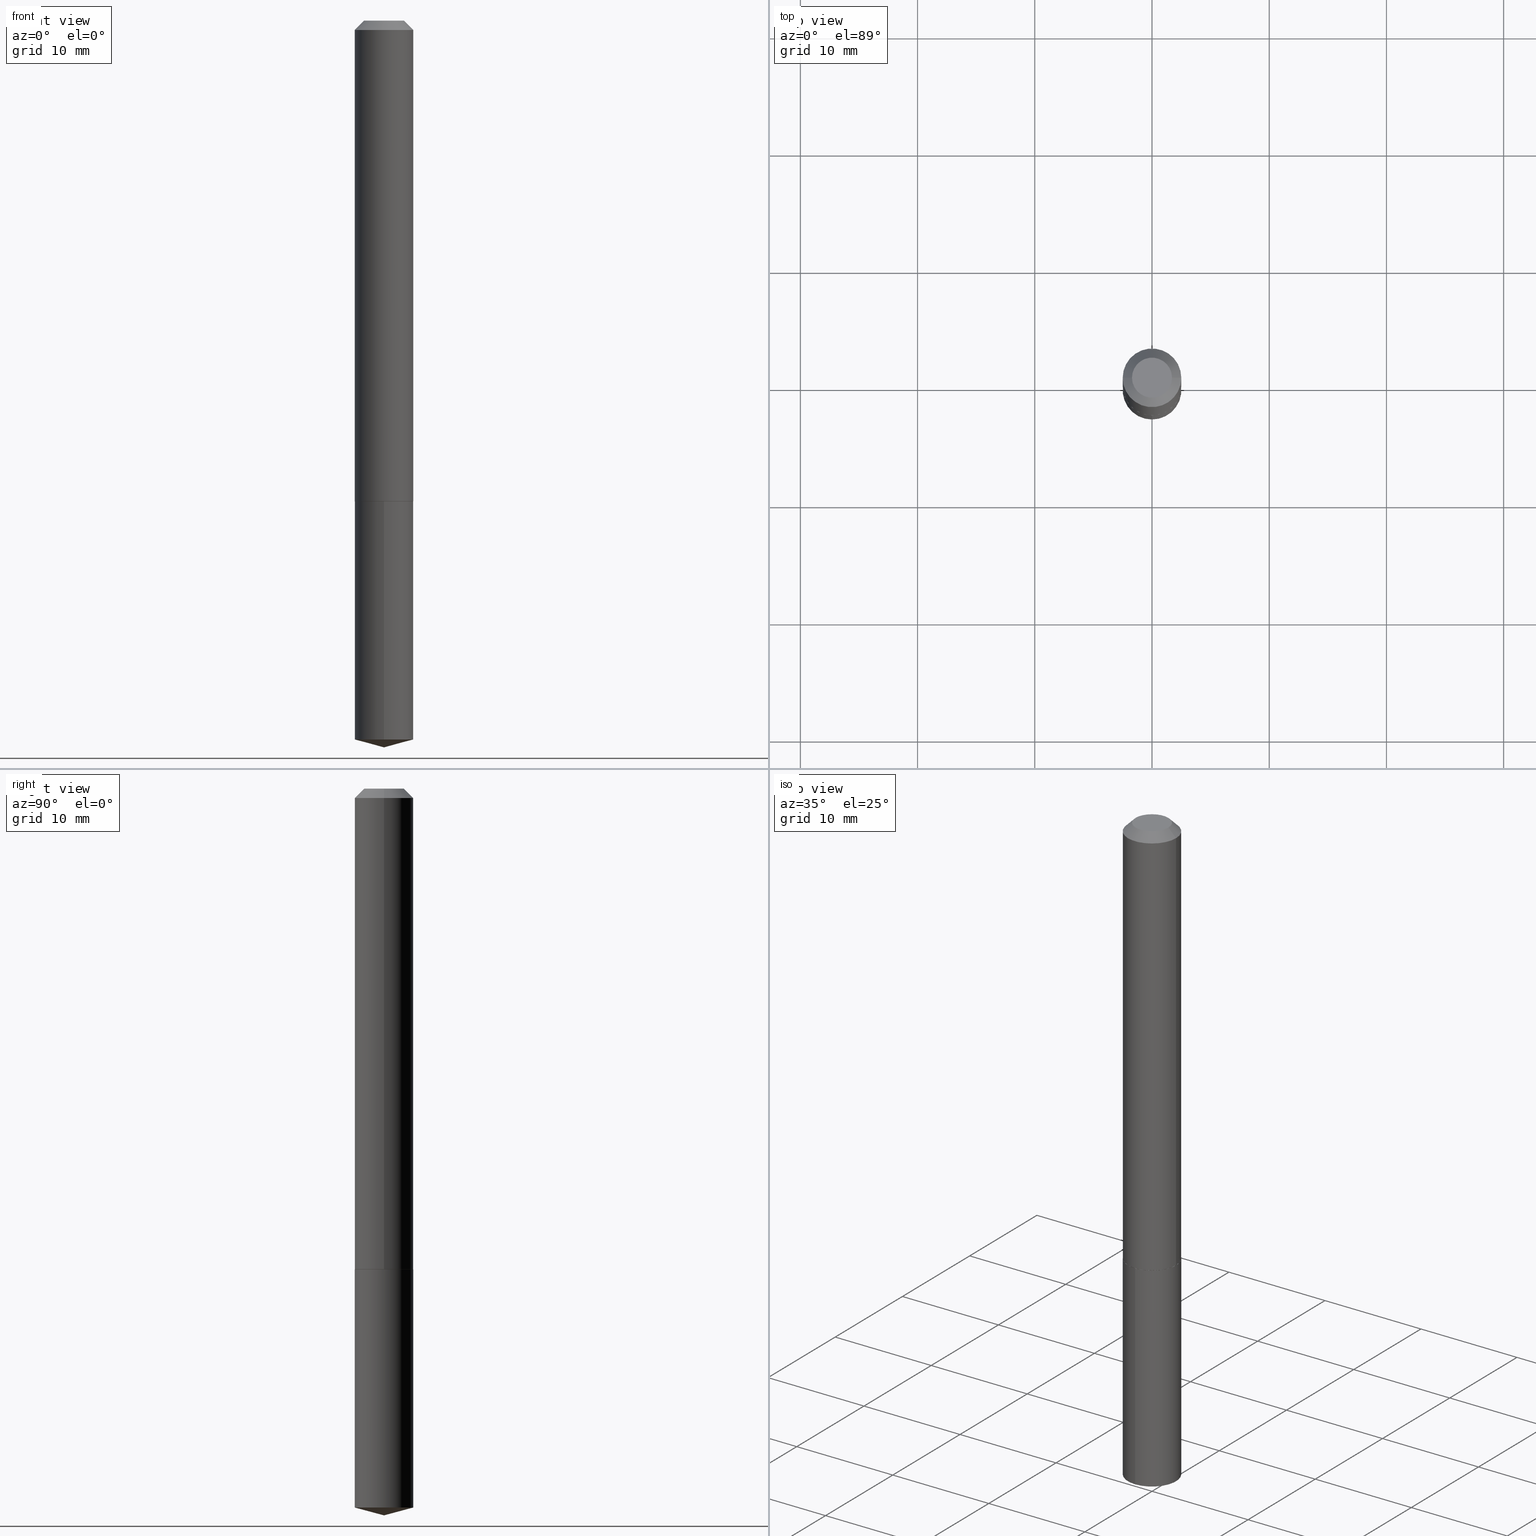
[diagram: canonical four-view strip — front | top / right | iso, engineering-drawing reading convention]
A machine part, canonical four-view strip (front | top / right | iso — engineering-drawing reading convention). The complete STEP part file that produces these views, byte-faithful:
ISO-10303-21;
HEADER;
FILE_DESCRIPTION (( 'STEP AP203' ),
    '1' );
FILE_NAME ('63007.STEP',
    '2024-04-23T07:25:26',
    ( '' ),
    ( '' ),
    'SwSTEP 2.0',
    'SolidWorks 2023',
    '' );
FILE_SCHEMA (( 'CONFIG_CONTROL_DESIGN' ));
ENDSEC;

DATA;
#1 = APPROVAL_DATE_TIME ( #325, #304 ) ;
#2 = ORIENTED_EDGE ( 'NONE', *, *, #142, .F. ) ;
#3 = CARTESIAN_POINT ( 'NONE',  ( -6.874726756181734128E-16, -0.09845000000000563023, -1.614199999999999635 ) ) ;
#4 = CIRCLE ( 'NONE', #221, 0.09844999999999999585 ) ;
#5 = EDGE_LOOP ( 'NONE', ( #296, #244, #120, #182 ) ) ;
#6 = EDGE_CURVE ( 'NONE', #123, #162, #85, .T. ) ;
#7 = EDGE_LOOP ( 'NONE', ( #89, #301, #61, #267 ) ) ;
#8 = ORIENTED_EDGE ( 'NONE', *, *, #184, .F. ) ;
#9 = DIRECTION ( 'NONE',  ( -6.982962677686265922E-15, -1.000000000000000000, 2.774858297271979165E-15 ) ) ;
#10 = CYLINDRICAL_SURFACE ( 'NONE', #77, 0.09844999999999999585 ) ;
#11 = FACE_OUTER_BOUND ( 'NONE', #333, .T. ) ;
#12 = DIRECTION ( 'NONE',  ( -6.982962677686265922E-15, -1.000000000000000000, 2.774858297271979165E-15 ) ) ;
#13 = APPROVAL_PERSON_ORGANIZATION ( #231, #324, #75 ) ;
#14 = DIRECTION ( 'NONE',  ( 1.000000000000000000, -6.982962677686266711E-15, 4.876163892769828153E-29 ) ) ;
#15 = EDGE_CURVE ( 'NONE', #118, #159, #319, .T. ) ;
#16 = DIRECTION ( 'NONE',  ( -2.445468806185136597E-29, 3.491481338843145583E-15, 1.000000000000000000 ) ) ;
#17 = CALENDAR_DATE ( 2024, 23, 4 ) ;
#18 = PERSON_AND_ORGANIZATION ( #179, #53 ) ;
#19 = DIRECTION ( 'NONE',  ( 1.000000000000000000, -6.982962677686267499E-15, 4.876176775795935793E-29 ) ) ;
#20 = VERTEX_POINT ( 'NONE', #336 ) ;
#21 = APPLICATION_PROTOCOL_DEFINITION ( 'international standard', 'config_control_design', 1994, #340 ) ;
#22 = CARTESIAN_POINT ( 'NONE',  ( -0.09795000000000038398, -4.937323340309476167E-15, -1.614200000000000523 ) ) ;
#23 = CARTESIAN_POINT ( 'NONE',  ( 3.946253012540955150E-29, -5.634203436491184654E-15, -1.613700000000000134 ) ) ;
#24 = ORIENTED_EDGE ( 'NONE', *, *, #55, .T. ) ;
#25 = CONICAL_SURFACE ( 'NONE', #124, 0.09845000000000000973, 0.7853981633974452814 ) ;
#26 = AXIS2_PLACEMENT_3D ( 'NONE', #344, #275, #189 ) ;
#27 = ORIENTED_EDGE ( 'NONE', *, *, #122, .T. ) ;
#28 = CARTESIAN_POINT ( 'NONE',  ( 7.642090019328601786E-31, -1.091087918388490144E-16, -0.03125000000000020123 ) ) ;
#29 = PERSON_AND_ORGANIZATION ( #179, #53 ) ;
#30 = VERTEX_POINT ( 'NONE', #127 ) ;
#31 = LINE ( 'NONE', #331, #32 ) ;
#32 = VECTOR ( 'NONE', #338, 39.37007874015748854 ) ;
#33 = COORDINATED_UNIVERSAL_TIME_OFFSET ( 5, 0, .BEHIND. ) ;
#34 = ORIENTED_EDGE ( 'NONE', *, *, #122, .F. ) ;
#35 = EDGE_CURVE ( 'NONE', #262, #159, #251, .T. ) ;
#36 = ORIENTED_EDGE ( 'NONE', *, *, #235, .F. ) ;
#37 = ORIENTED_EDGE ( 'NONE', *, *, #346, .F. ) ;
#38 = CARTESIAN_POINT ( 'NONE',  ( -0.09845000000000020401, -4.934674113135364966E-15, -1.613700000000000134 ) ) ;
#39 = CARTESIAN_POINT ( 'NONE',  ( 0.09845000000000010687, -6.874726756182137434E-16, 4.800596035771104119E-30 ) ) ;
#40 = DESIGN_CONTEXT ( 'detailed design', #340, 'design' ) ;
#41 = FACE_OUTER_BOUND ( 'NONE', #181, .T. ) ;
#42 = CC_DESIGN_APPROVAL ( #304, ( #183 ) ) ;
#43 = DIRECTION ( 'NONE',  ( 1.000000000000000000, -6.982962677686262766E-15, 0.000000000000000000 ) ) ;
#44 = CC_DESIGN_DATE_AND_TIME_ASSIGNMENT ( #288, #58, ( #183 ) ) ;
#45 = DIRECTION ( 'NONE',  ( 6.982962677686265922E-15, 1.000000000000000000, -3.491974583815791773E-15 ) ) ;
#46 = CALENDAR_DATE ( 2024, 23, 4 ) ;
#47 = CIRCLE ( 'NONE', #56, 0.09845000000000020401 ) ;
#48 = DIRECTION ( 'NONE',  ( 1.000000000000000000, 0.000000000000000000, 0.000000000000000000 ) ) ;
#49 = FACE_OUTER_BOUND ( 'NONE', #335, .T. ) ;
#50 = CARTESIAN_POINT ( 'NONE',  ( 3.946253012540955150E-29, -5.634203436491184654E-15, -1.613700000000000134 ) ) ;
#51 = ORIENTED_EDGE ( 'NONE', *, *, #112, .T. ) ;
#52 = CIRCLE ( 'NONE', #266, 0.09844999999999999585 ) ;
#53 = ORGANIZATION ( 'UNSPECIFIED', 'UNSPECIFIED', '' ) ;
#54 = CARTESIAN_POINT ( 'NONE',  ( 5.968304087087962554E-29, -8.523560761635967221E-15, -2.440900000000000070 ) ) ;
#55 = EDGE_CURVE ( 'NONE', #362, #123, #167, .T. ) ;
#56 = AXIS2_PLACEMENT_3D ( 'NONE', #173, #176, #210 ) ;
#57 = PRODUCT_DEFINITION ( 'UNKNOWN', '', #203, #40 ) ;
#58 = DATE_TIME_ROLE ( 'classification_date' ) ;
#59 = DIRECTION ( 'NONE',  ( -2.445468806185136597E-29, 3.491481338843145583E-15, 1.000000000000000000 ) ) ;
#60 = CARTESIAN_POINT ( 'NONE',  ( 5.904358669745989161E-29, -8.430647679871851381E-15, -2.414520402005156718 ) ) ;
#61 = ORIENTED_EDGE ( 'NONE', *, *, #6, .F. ) ;
#62 = DIRECTION ( 'NONE',  ( -6.745023994389849388E-15, -0.9659258262890689783, 0.2588190451025181305 ) ) ;
#63 = ORIENTED_EDGE ( 'NONE', *, *, #357, .F. ) ;
#64 = CC_DESIGN_SECURITY_CLASSIFICATION ( #183, ( #203 ) ) ;
#65 = LENGTH_MEASURE_WITH_UNIT ( LENGTH_MEASURE( 0.02539999999999999897 ), #204 );
#66 = CIRCLE ( 'NONE', #26, 0.09795000000000038398 ) ;
#67 = VERTEX_POINT ( 'NONE', #129 ) ;
#68 = EDGE_LOOP ( 'NONE', ( #27, #188 ) ) ;
#69 = EDGE_CURVE ( 'NONE', #141, #162, #337, .T. ) ;
#70 = DIRECTION ( 'NONE',  ( -0.7071067811861008190, 7.493145998868740151E-15, 0.7071067811869942155 ) ) ;
#71 = CARTESIAN_POINT ( 'NONE',  ( 3.947475746944047390E-29, -5.635949177160606158E-15, -1.614199999999999857 ) ) ;
#72 = CARTESIAN_POINT ( 'NONE',  ( -2.949913012720686933E-47, 4.211693974208519599E-33, 1.206277097160142896E-18 ) ) ;
#73 = APPROVAL_STATUS ( 'not_yet_approved' ) ;
#74 = CARTESIAN_POINT ( 'NONE',  ( 3.947475746944047390E-29, -5.635949177160606158E-15, -1.614199999999999857 ) ) ;
#75 = APPROVAL_ROLE ( '' ) ;
#76 = DIRECTION ( 'NONE',  ( 2.445124375061641849E-29, -3.491974583815791773E-15, -1.000000000000000000 ) ) ;
#77 = AXIS2_PLACEMENT_3D ( 'NONE', #168, #274, #9 ) ;
#78 = DIRECTION ( 'NONE',  ( -2.445468806185136597E-29, 3.491481338843145583E-15, 1.000000000000000000 ) ) ;
#79 = CARTESIAN_POINT ( 'NONE',  ( 0.09845000000000020401, -6.321676112109399581E-15, -1.613700000000000134 ) ) ;
#80 = PERSON_AND_ORGANIZATION_ROLE ( 'design_supplier' ) ;
#81 = EDGE_LOOP ( 'NONE', ( #37, #157, #88, #285 ) ) ;
#82 = APPROVAL_PERSON_ORGANIZATION ( #29, #304, #212 ) ;
#83 = CALENDAR_DATE ( 2024, 23, 4 ) ;
#84 = PRODUCT_DEFINITION_SHAPE ( 'NONE', 'NONE',  #57 ) ;
#85 = CIRCLE ( 'NONE', #286, 0.09845000000000000973 ) ;
#86 = AXIS2_PLACEMENT_3D ( 'NONE', #165, #217, #12 ) ;
#87 = PLANE ( 'NONE',  #328 ) ;
#88 = ORIENTED_EDGE ( 'NONE', *, *, #6, .T. ) ;
#89 = ORIENTED_EDGE ( 'NONE', *, *, #225, .T. ) ;
#90 = DIRECTION ( 'NONE',  ( 2.438088387897960049E-29, -3.491481338843145188E-15, -1.000000000000000000 ) ) ;
#91 = ORIENTED_EDGE ( 'NONE', *, *, #290, .F. ) ;
#92 = CC_DESIGN_PERSON_AND_ORGANIZATION_ASSIGNMENT ( #106, #198, ( #183 ) ) ;
#93 = ORIENTED_EDGE ( 'NONE', *, *, #69, .F. ) ;
#94 = ORIENTED_EDGE ( 'NONE', *, *, #366, .T. ) ;
#95 = EDGE_CURVE ( 'NONE', #141, #362, #248, .T. ) ;
#96 = FACE_OUTER_BOUND ( 'NONE', #365, .T. ) ;
#97 = ADVANCED_FACE ( 'NONE', ( #96 ), #194, .F. ) ;
#98 = DIRECTION ( 'NONE',  ( -2.445124375061642129E-29, 3.491974583815791773E-15, 1.000000000000000000 ) ) ;
#99 = LINE ( 'NONE', #374, #105 ) ;
#100 = CONICAL_SURFACE ( 'NONE', #353, 146.9311341562586506, 1.308996938995753423 ) ;
#101 = EDGE_CURVE ( 'NONE', #238, #215, #66, .T. ) ;
#102 = CARTESIAN_POINT ( 'NONE',  ( 3.947475746944048512E-29, -5.635949177160606947E-15, -1.614200000000000523 ) ) ;
#103 = DIRECTION ( 'NONE',  ( -2.438088387897960049E-29, 3.491481338843145188E-15, 1.000000000000000000 ) ) ;
#104 = CYLINDRICAL_SURFACE ( 'NONE', #355, 0.09845000000000010687 ) ;
#105 = VECTOR ( 'NONE', #70, 39.37007874015748143 ) ;
#106 = PERSON_AND_ORGANIZATION ( #179, #53 ) ;
#107 = FACE_OUTER_BOUND ( 'NONE', #327, .T. ) ;
#108 = FACE_OUTER_BOUND ( 'NONE', #369, .T. ) ;
#109 = DATE_AND_TIME ( #46, #277 ) ;
#110 = ADVANCED_FACE ( 'NONE', ( #342 ), #372, .F. ) ;
#111 = DIRECTION ( 'NONE',  ( -0.7071067811865453523, 2.468850131082234184E-15, -0.7071067811865496822 ) ) ;
#112 = EDGE_CURVE ( 'NONE', #215, #141, #99, .T. ) ;
#113 = DIRECTION ( 'NONE',  ( -2.445468806185136597E-29, 3.491481338843145583E-15, 1.000000000000000000 ) ) ;
#114 = VECTOR ( 'NONE', #350, 39.37007874015748143 ) ;
#115 = DATE_AND_TIME ( #83, #177 ) ;
#116 = AXIS2_PLACEMENT_3D ( 'NONE', #309, #379, #191 ) ;
#117 = ORIENTED_EDGE ( 'NONE', *, *, #225, .F. ) ;
#118 = VERTEX_POINT ( 'NONE', #306 ) ;
#119 = AXIS2_PLACEMENT_3D ( 'NONE', #293, #305, #130 ) ;
#120 = ORIENTED_EDGE ( 'NONE', *, *, #357, .T. ) ;
#121 = ORIENTED_EDGE ( 'NONE', *, *, #211, .F. ) ;
#122 = EDGE_CURVE ( 'NONE', #67, #20, #131, .T. ) ;
#123 = VERTEX_POINT ( 'NONE', #223 ) ;
#124 = AXIS2_PLACEMENT_3D ( 'NONE', #125, #128, #138 ) ;
#125 = CARTESIAN_POINT ( 'NONE',  ( 7.642090019328601786E-31, -1.091087918388490144E-16, -0.03125000000000020123 ) ) ;
#126 = CC_DESIGN_PERSON_AND_ORGANIZATION_ASSIGNMENT ( #18, #348, ( #359 ) ) ;
#127 = CARTESIAN_POINT ( 'NONE',  ( 5.968304087087962554E-29, -8.523560761635967221E-15, -2.440900000000000070 ) ) ;
#128 = DIRECTION ( 'NONE',  ( 2.445468806185136597E-29, -3.491481338843145583E-15, -1.000000000000000000 ) ) ;
#129 = CARTESIAN_POINT ( 'NONE',  ( -0.06719999999999999585, 5.238094878599404868E-16, 1.206277097156670637E-18 ) ) ;
#130 = DIRECTION ( 'NONE',  ( -6.982962677686265922E-15, -1.000000000000000000, 2.774858297271979165E-15 ) ) ;
#131 = CIRCLE ( 'NONE', #247, 0.06719999999999999585 ) ;
#132 = CARTESIAN_POINT ( 'NONE',  ( -0.09845000000000010687, 6.995293233558193923E-16, -4.842691596355960348E-30 ) ) ;
#133 = VECTOR ( 'NONE', #111, 39.37007874015748143 ) ;
#134 = EDGE_CURVE ( 'NONE', #159, #118, #4, .T. ) ;
#135 = FACE_OUTER_BOUND ( 'NONE', #330, .T. ) ;
#136 = DIRECTION ( 'NONE',  ( -2.445124375061642129E-29, 3.491974583815791773E-15, 1.000000000000000000 ) ) ;
#137 = PERSON_AND_ORGANIZATION_ROLE ( 'creator' ) ;
#138 = DIRECTION ( 'NONE',  ( -1.000000000000000000, 6.982962677686266711E-15, 0.000000000000000000 ) ) ;
#139 = CARTESIAN_POINT ( 'NONE',  ( -9.029587910784769090E-28, 1.289565497578552606E-13, 36.92917874015748225 ) ) ;
#140 = CARTESIAN_POINT ( 'NONE',  ( -1.474956506360343467E-47, 2.105846987104259800E-33, 6.031385485800714479E-19 ) ) ;
#141 = VERTEX_POINT ( 'NONE', #38 ) ;
#142 = EDGE_CURVE ( 'NONE', #246, #262, #52, .T. ) ;
#143 = DIRECTION ( 'NONE',  ( -2.445468806185136597E-29, 3.491481338843145583E-15, 1.000000000000000000 ) ) ;
#144 = COORDINATED_UNIVERSAL_TIME_OFFSET ( 5, 0, .BEHIND. ) ;
#145 = AXIS2_PLACEMENT_3D ( 'NONE', #60, #289, #260 ) ;
#146 = ORIENTED_EDGE ( 'NONE', *, *, #15, .F. ) ;
#147 = LOCAL_TIME ( 3, 25, 26.00000000000000000, #33 ) ;
#148 = AXIS2_PLACEMENT_3D ( 'NONE', #219, #228, #254 ) ;
#149 = ORIENTED_EDGE ( 'NONE', *, *, #302, .T. ) ;
#150 = DIRECTION ( 'NONE',  ( -2.445468806185136597E-29, 3.491481338843145583E-15, 1.000000000000000000 ) ) ;
#151 = APPROVAL_STATUS ( 'not_yet_approved' ) ;
#152 = ORIENTED_EDGE ( 'NONE', *, *, #101, .T. ) ;
#153 = ADVANCED_FACE ( 'NONE', ( #135 ), #278, .T. ) ;
#154 = CIRCLE ( 'NONE', #264, 0.09845000000000000973 ) ;
#155 =( GEOMETRIC_REPRESENTATION_CONTEXT ( 3 ) GLOBAL_UNCERTAINTY_ASSIGNED_CONTEXT ( ( #218 ) ) GLOBAL_UNIT_ASSIGNED_CONTEXT ( ( #227, #307, #226 ) ) REPRESENTATION_CONTEXT ( 'NONE', 'WORKASPACE' ) );
#156 = CALENDAR_DATE ( 2024, 23, 4 ) ;
#157 = ORIENTED_EDGE ( 'NONE', *, *, #363, .T. ) ;
#158 = ADVANCED_FACE ( 'NONE', ( #41 ), #10, .T. ) ;
#159 = VERTEX_POINT ( 'NONE', #373 ) ;
#160 = MANIFOLD_SOLID_BREP ( 'Body-Move/Copy2[1]', #361 ) ;
#161 = ADVANCED_FACE ( 'NONE', ( #11 ), #341, .T. ) ;
#162 = VERTEX_POINT ( 'NONE', #378 ) ;
#163 = DIRECTION ( 'NONE',  ( -6.982962677686265922E-15, -1.000000000000000000, 2.774858297271979165E-15 ) ) ;
#164 = DIRECTION ( 'NONE',  ( -2.445468806185136597E-29, 3.491481338843145583E-15, 1.000000000000000000 ) ) ;
#165 = CARTESIAN_POINT ( 'NONE',  ( 3.947475746944047390E-29, -5.635949177160606158E-15, -1.614199999999999857 ) ) ;
#166 = AXIS2_PLACEMENT_3D ( 'NONE', #377, #200, #48 ) ;
#167 = LINE ( 'NONE', #39, #312 ) ;
#168 = CARTESIAN_POINT ( 'NONE',  ( 3.947475746944047390E-29, -5.635949177160606158E-15, -1.614199999999999857 ) ) ;
#169 = APPROVAL_DATE_TIME ( #109, #324 ) ;
#170 = MANIFOLD_SOLID_BREP ( 'Body-Move/Copy2[2]', #272 ) ;
#171 = CARTESIAN_POINT ( 'NONE',  ( 0.000000000000000000, 0.000000000000000000, 0.000000000000000000 ) ) ;
#172 = CONICAL_SURFACE ( 'NONE', #245, 0.09845000000000020401, 0.7853981633968165621 ) ;
#173 = CARTESIAN_POINT ( 'NONE',  ( 3.946253012540955150E-29, -5.634203436491184654E-15, -1.613700000000000134 ) ) ;
#174 = VECTOR ( 'NONE', #250, 39.37007874015748143 ) ;
#175 = PERSON_AND_ORGANIZATION ( #179, #53 ) ;
#176 = DIRECTION ( 'NONE',  ( -2.445468806185136597E-29, 3.491481338843145583E-15, 1.000000000000000000 ) ) ;
#177 = LOCAL_TIME ( 3, 25, 26.00000000000000000, #144 ) ;
#178 = DIRECTION ( 'NONE',  ( 1.000000000000000000, -6.982962677686266711E-15, 0.000000000000000000 ) ) ;
#179 = PERSON ( 'UNSPECIFIED', 'UNSPECIFIED', 'UNSPECIFIED', ('UNSPECIFIED'), ('UNSPECIFIED'), ('UNSPECIFIED') ) ;
#180 = CARTESIAN_POINT ( 'NONE',  ( 6.995293233558775708E-16, 0.09844999999999157203, -2.414520402005157163 ) ) ;
#181 = EDGE_LOOP ( 'NONE', ( #216, #298, #149, #241 ) ) ;
#182 = ORIENTED_EDGE ( 'NONE', *, *, #95, .F. ) ;
#183 = SECURITY_CLASSIFICATION ( '', '', #257 ) ;
#184 = EDGE_CURVE ( 'NONE', #215, #238, #326, .T. ) ;
#185 = AXIS2_PLACEMENT_3D ( 'NONE', #351, #78, #315 ) ;
#186 = ORIENTED_EDGE ( 'NONE', *, *, #101, .F. ) ;
#187 = APPROVAL ( #73, 'UNSPECIFIED' ) ;
#188 = ORIENTED_EDGE ( 'NONE', *, *, #346, .T. ) ;
#189 = DIRECTION ( 'NONE',  ( 1.000000000000000000, -6.982962677686262766E-15, 0.000000000000000000 ) ) ;
#190 = PERSON_AND_ORGANIZATION ( #179, #53 ) ;
#191 = DIRECTION ( 'NONE',  ( -6.982962677686267499E-15, -1.000000000000000000, 3.510303681827553658E-15 ) ) ;
#192 = DIRECTION ( 'NONE',  ( 1.000000000000000000, -6.982962677686265922E-15, 4.876176775795935793E-29 ) ) ;
#193 = CARTESIAN_POINT ( 'NONE',  ( 8.037174106459642832E-30, -1.013799004635187062E-14, -1.614200000000000301 ) ) ;
#194 = PLANE ( 'NONE',  #370 ) ;
#195 = PERSON_AND_ORGANIZATION ( #179, #53 ) ;
#196 = ADVANCED_FACE ( 'NONE', ( #201 ), #87, .F. ) ;
#197 = DIRECTION ( 'NONE',  ( 1.000000000000000000, -6.982962677686266711E-15, 0.000000000000000000 ) ) ;
#198 = PERSON_AND_ORGANIZATION_ROLE ( 'classification_officer' ) ;
#199 = FACE_OUTER_BOUND ( 'NONE', #303, .T. ) ;
#200 = DIRECTION ( 'NONE',  ( 0.000000000000000000, 0.000000000000000000, 1.000000000000000000 ) ) ;
#201 = FACE_OUTER_BOUND ( 'NONE', #68, .T. ) ;
#202 = APPROVAL_STATUS ( 'not_yet_approved' ) ;
#203 = PRODUCT_DEFINITION_FORMATION_WITH_SPECIFIED_SOURCE ( 'ANY', '', #359, .NOT_KNOWN. ) ;
#204 =( LENGTH_UNIT ( ) NAMED_UNIT ( * ) SI_UNIT ( $, .METRE. ) );
#205 = DIRECTION ( 'NONE',  ( 2.445468806185136597E-29, -3.491481338843145583E-15, -1.000000000000000000 ) ) ;
#206 = CC_DESIGN_DATE_AND_TIME_ASSIGNMENT ( #115, #343, ( #57 ) ) ;
#207 = CARTESIAN_POINT ( 'NONE',  ( 7.642090019328601786E-31, -1.091087918388490144E-16, -0.03125000000000020123 ) ) ;
#208 = ORIENTED_EDGE ( 'NONE', *, *, #363, .F. ) ;
#209 = VECTOR ( 'NONE', #62, 39.37007874015748143 ) ;
#210 = DIRECTION ( 'NONE',  ( 1.000000000000000000, -6.982962677686269866E-15, 0.000000000000000000 ) ) ;
#211 = EDGE_CURVE ( 'NONE', #30, #246, #323, .T. ) ;
#212 = APPROVAL_ROLE ( '' ) ;
#213 = ORIENTED_EDGE ( 'NONE', *, *, #134, .T. ) ;
#214 = ADVANCED_FACE ( 'NONE', ( #199 ), #329, .T. ) ;
#215 = VERTEX_POINT ( 'NONE', #22 ) ;
#216 = ORIENTED_EDGE ( 'NONE', *, *, #35, .F. ) ;
#217 = DIRECTION ( 'NONE',  ( -2.445124375061642129E-29, 3.491974583815791773E-15, 1.000000000000000000 ) ) ;
#218 = UNCERTAINTY_MEASURE_WITH_UNIT (LENGTH_MEASURE( 1.000000000000000082E-05 ), #227, 'distance_accuracy_value', 'NONE');
#219 = CARTESIAN_POINT ( 'NONE',  ( 3.946253012540955150E-29, -5.634203436491184654E-15, -1.613700000000000134 ) ) ;
#220 = VECTOR ( 'NONE', #256, 39.37007874015748143 ) ;
#221 = AXIS2_PLACEMENT_3D ( 'NONE', #71, #313, #163 ) ;
#222 = AXIS2_PLACEMENT_3D ( 'NONE', #364, #205, #332 ) ;
#223 = CARTESIAN_POINT ( 'NONE',  ( 0.09845000000000000973, -7.965814674570621538E-16, -0.03125000000000020123 ) ) ;
#224 = DIRECTION ( 'NONE',  ( -2.445468806185136597E-29, 3.491481338843145583E-15, 1.000000000000000000 ) ) ;
#225 = EDGE_CURVE ( 'NONE', #362, #141, #47, .T. ) ;
#226 =( NAMED_UNIT ( * ) SI_UNIT ( $, .STERADIAN. ) SOLID_ANGLE_UNIT ( ) );
#227 =( CONVERSION_BASED_UNIT ( 'INCH', #65 ) LENGTH_UNIT ( ) NAMED_UNIT ( #232 ) );
#228 = DIRECTION ( 'NONE',  ( -2.445468806185136597E-29, 3.491481338843145583E-15, 1.000000000000000000 ) ) ;
#229 = DIRECTION ( 'NONE',  ( 1.000000000000000000, -6.982962677686267499E-15, 4.876176775795935793E-29 ) ) ;
#230 = CARTESIAN_POINT ( 'NONE',  ( 0.09845000000000020401, -6.321676112109399581E-15, -1.613700000000000134 ) ) ;
#231 = PERSON_AND_ORGANIZATION ( #179, #53 ) ;
#232 = DIMENSIONAL_EXPONENTS ( 1.000000000000000000, 0.000000000000000000, 0.000000000000000000, 0.000000000000000000, 0.000000000000000000, 0.000000000000000000, 0.000000000000000000 ) ;
#233 = CARTESIAN_POINT ( 'NONE',  ( 0.000000000000000000, 0.000000000000000000, 0.000000000000000000 ) ) ;
#234 = APPLICATION_CONTEXT ( 'configuration controlled 3d designs of mechanical parts and assemblies' ) ;
#235 = EDGE_CURVE ( 'NONE', #262, #246, #381, .T. ) ;
#236 = APPROVAL_PERSON_ORGANIZATION ( #190, #187, #310 ) ;
#237 = DIRECTION ( 'NONE',  ( 1.000000000000000000, -6.982962677686269866E-15, 0.000000000000000000 ) ) ;
#238 = VERTEX_POINT ( 'NONE', #390 ) ;
#239 = ORIENTED_EDGE ( 'NONE', *, *, #95, .T. ) ;
#240 = PRODUCT_RELATED_PRODUCT_CATEGORY ( 'detail', '', ( #359 ) ) ;
#241 = ORIENTED_EDGE ( 'NONE', *, *, #134, .F. ) ;
#242 = LINE ( 'NONE', #263, #133 ) ;
#243 = ORIENTED_EDGE ( 'NONE', *, *, #35, .T. ) ;
#244 = ORIENTED_EDGE ( 'NONE', *, *, #184, .T. ) ;
#245 = AXIS2_PLACEMENT_3D ( 'NONE', #23, #150, #281 ) ;
#246 = VERTEX_POINT ( 'NONE', #356 ) ;
#247 = AXIS2_PLACEMENT_3D ( 'NONE', #72, #164, #14 ) ;
#248 = CIRCLE ( 'NONE', #148, 0.09845000000000020401 ) ;
#249 = CARTESIAN_POINT ( 'NONE',  ( 6.995293233558578493E-16, 0.09844999999999436147, -1.614200000000000301 ) ) ;
#250 = DIRECTION ( 'NONE',  ( -2.445468806185136877E-29, 3.491481338843145188E-15, 1.000000000000000000 ) ) ;
#251 = LINE ( 'NONE', #249, #339 ) ;
#252 = LOCAL_TIME ( 3, 25, 26.00000000000000000, #316 ) ;
#253 = ADVANCED_FACE ( 'NONE', ( #287 ), #172, .T. ) ;
#254 = DIRECTION ( 'NONE',  ( 1.000000000000000000, -6.982962677686269866E-15, 0.000000000000000000 ) ) ;
#255 = CARTESIAN_POINT ( 'NONE',  ( 5.904358669745989161E-29, -8.430647679871851381E-15, -2.414520402005156718 ) ) ;
#256 = DIRECTION ( 'NONE',  ( -2.445124375061642129E-29, 3.491974583815791773E-15, 1.000000000000000000 ) ) ;
#257 = SECURITY_CLASSIFICATION_LEVEL ( 'unclassified' ) ;
#258 = LINE ( 'NONE', #230, #114 ) ;
#259 = DIRECTION ( 'NONE',  ( -6.982962677686267499E-15, -1.000000000000000000, 3.510303681827553658E-15 ) ) ;
#260 = DIRECTION ( 'NONE',  ( -6.982962677686265922E-15, -1.000000000000000000, 2.774858297271979165E-15 ) ) ;
#261 = ORIENTED_EDGE ( 'NONE', *, *, #366, .F. ) ;
#262 = VERTEX_POINT ( 'NONE', #180 ) ;
#263 = CARTESIAN_POINT ( 'NONE',  ( -0.09845000000000000973, 5.783638837793639525E-16, -0.03125000000000020123 ) ) ;
#264 = AXIS2_PLACEMENT_3D ( 'NONE', #28, #143, #197 ) ;
#265 = ORIENTED_EDGE ( 'NONE', *, *, #211, .T. ) ;
#266 = AXIS2_PLACEMENT_3D ( 'NONE', #255, #311, #279 ) ;
#267 = ORIENTED_EDGE ( 'NONE', *, *, #55, .F. ) ;
#268 = ADVANCED_FACE ( 'NONE', ( #295 ), #297, .T. ) ;
#269 = ORIENTED_EDGE ( 'NONE', *, *, #15, .T. ) ;
#270 = ADVANCED_FACE ( 'NONE', ( #107 ), #100, .T. ) ;
#271 = ORIENTED_EDGE ( 'NONE', *, *, #290, .T. ) ;
#272 = CLOSED_SHELL ( 'NONE', ( #268, #322, #214, #97, #253, #349, #380, #196 ) ) ;
#273 = CC_DESIGN_PERSON_AND_ORGANIZATION_ASSIGNMENT ( #175, #80, ( #203 ) ) ;
#274 = DIRECTION ( 'NONE',  ( -2.445124375061642129E-29, 3.491974583815791773E-15, 1.000000000000000000 ) ) ;
#275 = DIRECTION ( 'NONE',  ( -2.445468806185136597E-29, 3.491481338843145583E-15, 1.000000000000000000 ) ) ;
#276 = DIRECTION ( 'NONE',  ( -2.445468806185136877E-29, 3.491481338843145188E-15, 1.000000000000000000 ) ) ;
#277 = LOCAL_TIME ( 3, 25, 26.00000000000000000, #314 ) ;
#278 = CONICAL_SURFACE ( 'NONE', #116, 146.9311341562586506, 1.308996938995753423 ) ;
#279 = DIRECTION ( 'NONE',  ( -6.982962677686265922E-15, -1.000000000000000000, 2.774858297271979165E-15 ) ) ;
#280 = COORDINATED_UNIVERSAL_TIME_OFFSET ( 5, 0, .BEHIND. ) ;
#281 = DIRECTION ( 'NONE',  ( 1.000000000000000000, -6.982962677686269866E-15, 0.000000000000000000 ) ) ;
#282 = PERSON_AND_ORGANIZATION ( #179, #53 ) ;
#283 = DIRECTION ( 'NONE',  ( -2.445468806185136597E-29, 3.491481338843145583E-15, 1.000000000000000000 ) ) ;
#284 = CALENDAR_DATE ( 2024, 23, 4 ) ;
#285 = ORIENTED_EDGE ( 'NONE', *, *, #291, .F. ) ;
#286 = AXIS2_PLACEMENT_3D ( 'NONE', #207, #59, #178 ) ;
#287 = FACE_OUTER_BOUND ( 'NONE', #5, .T. ) ;
#288 = DATE_AND_TIME ( #284, #252 ) ;
#289 = DIRECTION ( 'NONE',  ( -2.445124375061642129E-29, 3.491974583815791773E-15, 1.000000000000000000 ) ) ;
#290 = EDGE_CURVE ( 'NONE', #162, #123, #154, .T. ) ;
#291 = EDGE_CURVE ( 'NONE', #67, #162, #242, .T. ) ;
#292 = CC_DESIGN_APPROVAL ( #324, ( #203 ) ) ;
#293 = CARTESIAN_POINT ( 'NONE',  ( 3.947475746944047390E-29, -5.635949177160606158E-15, -1.614199999999999857 ) ) ;
#294 = DIRECTION ( 'NONE',  ( 0.7071067811865453523, -7.319954787623248157E-15, -0.7071067811865496822 ) ) ;
#295 = FACE_OUTER_BOUND ( 'NONE', #81, .T. ) ;
#296 = ORIENTED_EDGE ( 'NONE', *, *, #112, .F. ) ;
#297 = CONICAL_SURFACE ( 'NONE', #222, 0.09845000000000000973, 0.7853981633974452814 ) ;
#298 = ORIENTED_EDGE ( 'NONE', *, *, #235, .T. ) ;
#299 = AXIS2_PLACEMENT_3D ( 'NONE', #74, #76, #45 ) ;
#300 = CC_DESIGN_APPROVAL ( #187, ( #57 ) ) ;
#301 = ORIENTED_EDGE ( 'NONE', *, *, #69, .T. ) ;
#302 = EDGE_CURVE ( 'NONE', #246, #118, #347, .T. ) ;
#303 = EDGE_LOOP ( 'NONE', ( #152, #51, #117, #63 ) ) ;
#304 = APPROVAL ( #151, 'UNSPECIFIED' ) ;
#305 = DIRECTION ( 'NONE',  ( -2.445124375061642129E-29, 3.491974583815791773E-15, 1.000000000000000000 ) ) ;
#306 = CARTESIAN_POINT ( 'NONE',  ( -6.874726756181734128E-16, -0.09845000000000563023, -1.614199999999999635 ) ) ;
#307 =( NAMED_UNIT ( * ) PLANE_ANGLE_UNIT ( ) SI_UNIT ( $, .RADIAN. ) );
#308 = APPLICATION_PROTOCOL_DEFINITION ( 'international standard', 'config_control_design', 1994, #234 ) ;
#309 = CARTESIAN_POINT ( 'NONE',  ( -9.029587910784769090E-28, 1.289565497578552606E-13, 36.92917874015748225 ) ) ;
#310 = APPROVAL_ROLE ( '' ) ;
#311 = DIRECTION ( 'NONE',  ( -2.445124375061642129E-29, 3.491974583815791773E-15, 1.000000000000000000 ) ) ;
#312 = VECTOR ( 'NONE', #276, 39.37007874015748143 ) ;
#313 = DIRECTION ( 'NONE',  ( -2.445124375061642129E-29, 3.491974583815791773E-15, 1.000000000000000000 ) ) ;
#314 = COORDINATED_UNIVERSAL_TIME_OFFSET ( 5, 0, .BEHIND. ) ;
#315 = DIRECTION ( 'NONE',  ( 1.000000000000000000, -6.982962677686266711E-15, 4.876163892769828153E-29 ) ) ;
#316 = COORDINATED_UNIVERSAL_TIME_OFFSET ( 5, 0, .BEHIND. ) ;
#317 = LINE ( 'NONE', #368, #375 ) ;
#318 = AXIS2_PLACEMENT_3D ( 'NONE', #171, #283, #19 ) ;
#319 = CIRCLE ( 'NONE', #119, 0.09844999999999999585 ) ;
#320 = CIRCLE ( 'NONE', #185, 0.06719999999999999585 ) ;
#321 = CYLINDRICAL_SURFACE ( 'NONE', #318, 0.09845000000000010687 ) ;
#322 = ADVANCED_FACE ( 'NONE', ( #385 ), #104, .T. ) ;
#323 = LINE ( 'NONE', #54, #209 ) ;
#324 = APPROVAL ( #202, 'UNSPECIFIED' ) ;
#325 = DATE_AND_TIME ( #156, #147 ) ;
#326 = CIRCLE ( 'NONE', #371, 0.09795000000000038398 ) ;
#327 = EDGE_LOOP ( 'NONE', ( #121, #94, #2 ) ) ;
#328 = AXIS2_PLACEMENT_3D ( 'NONE', #140, #90, #388 ) ;
#329 = CONICAL_SURFACE ( 'NONE', #389, 0.09845000000000020401, 0.7853981633968165621 ) ;
#330 = EDGE_LOOP ( 'NONE', ( #261, #265, #36 ) ) ;
#331 = CARTESIAN_POINT ( 'NONE',  ( 5.969425799116307608E-29, -8.521968369566275013E-15, -2.440900000000000070 ) ) ;
#332 = DIRECTION ( 'NONE',  ( -1.000000000000000000, 6.982962677686266711E-15, 0.000000000000000000 ) ) ;
#333 = EDGE_LOOP ( 'NONE', ( #334, #243, #146, #367 ) ) ;
#334 = ORIENTED_EDGE ( 'NONE', *, *, #142, .T. ) ;
#335 = EDGE_LOOP ( 'NONE', ( #93, #239, #24, #91 ) ) ;
#336 = CARTESIAN_POINT ( 'NONE',  ( 0.06719999999999999585, -6.227751425848515766E-16, 1.206277097163960667E-18 ) ) ;
#337 = LINE ( 'NONE', #132, #174 ) ;
#338 = DIRECTION ( 'NONE',  ( 6.863315791527703726E-15, 0.9659258262890707547, 0.2588190451025113581 ) ) ;
#339 = VECTOR ( 'NONE', #98, 39.37007874015748143 ) ;
#340 = APPLICATION_CONTEXT ( 'configuration controlled 3d designs of mechanical parts and assemblies' ) ;
#341 = CYLINDRICAL_SURFACE ( 'NONE', #86, 0.09844999999999999585 ) ;
#342 = FACE_OUTER_BOUND ( 'NONE', #358, .T. ) ;
#343 = DATE_TIME_ROLE ( 'creation_date' ) ;
#344 = CARTESIAN_POINT ( 'NONE',  ( 3.947475746944048512E-29, -5.635949177160606947E-15, -1.614200000000000523 ) ) ;
#345 = LOCAL_TIME ( 3, 25, 26.00000000000000000, #280 ) ;
#346 = EDGE_CURVE ( 'NONE', #20, #67, #320, .T. ) ;
#347 = LINE ( 'NONE', #3, #220 ) ;
#348 = PERSON_AND_ORGANIZATION_ROLE ( 'design_owner' ) ;
#349 = ADVANCED_FACE ( 'NONE', ( #49 ), #321, .T. ) ;
#350 = DIRECTION ( 'NONE',  ( 0.7071067811861008190, -2.468850131077577932E-15, 0.7071067811869942155 ) ) ;
#351 = CARTESIAN_POINT ( 'NONE',  ( -2.949913012720686933E-47, 4.211693974208519599E-33, 1.206277097160142896E-18 ) ) ;
#352 = PERSON_AND_ORGANIZATION_ROLE ( 'creator' ) ;
#353 = AXIS2_PLACEMENT_3D ( 'NONE', #139, #136, #259 ) ;
#354 = SHAPE_DEFINITION_REPRESENTATION ( #84, #384 ) ;
#355 = AXIS2_PLACEMENT_3D ( 'NONE', #233, #113, #229 ) ;
#356 = CARTESIAN_POINT ( 'NONE',  ( -6.874726756181538885E-16, -0.09845000000000843354, -2.414520402005156718 ) ) ;
#357 = EDGE_CURVE ( 'NONE', #238, #362, #258, .T. ) ;
#358 = EDGE_LOOP ( 'NONE', ( #269, #213 ) ) ;
#359 = PRODUCT ( '63007', '63007', '', ( #383 ) ) ;
#360 = ORIENTED_EDGE ( 'NONE', *, *, #291, .T. ) ;
#361 = CLOSED_SHELL ( 'NONE', ( #161, #270, #153, #158, #110 ) ) ;
#362 = VERTEX_POINT ( 'NONE', #79 ) ;
#363 = EDGE_CURVE ( 'NONE', #20, #123, #317, .T. ) ;
#364 = CARTESIAN_POINT ( 'NONE',  ( 7.642090019328601786E-31, -1.091087918388490144E-16, -0.03125000000000020123 ) ) ;
#365 = EDGE_LOOP ( 'NONE', ( #186, #8 ) ) ;
#366 = EDGE_CURVE ( 'NONE', #30, #262, #31, .T. ) ;
#367 = ORIENTED_EDGE ( 'NONE', *, *, #302, .F. ) ;
#368 = CARTESIAN_POINT ( 'NONE',  ( 0.09845000000000000973, -7.845248197194565048E-16, -0.03125000000000020123 ) ) ;
#369 = EDGE_LOOP ( 'NONE', ( #208, #34, #360, #271 ) ) ;
#370 = AXIS2_PLACEMENT_3D ( 'NONE', #193, #103, #192 ) ;
#371 = AXIS2_PLACEMENT_3D ( 'NONE', #102, #224, #43 ) ;
#372 = PLANE ( 'NONE',  #299 ) ;
#373 = CARTESIAN_POINT ( 'NONE',  ( 6.995293233558776694E-16, 0.09844999999999436147, -1.614200000000000301 ) ) ;
#374 = CARTESIAN_POINT ( 'NONE',  ( -0.09845000000000020401, -4.934674113135364966E-15, -1.613700000000000134 ) ) ;
#375 = VECTOR ( 'NONE', #294, 39.37007874015748143 ) ;
#376 = CC_DESIGN_PERSON_AND_ORGANIZATION_ASSIGNMENT ( #282, #137, ( #203 ) ) ;
#377 = CARTESIAN_POINT ( 'NONE',  ( 0.000000000000000000, 0.000000000000000000, 0.000000000000000000 ) ) ;
#378 = CARTESIAN_POINT ( 'NONE',  ( -0.09845000000000000973, -2.172126790809196006E-15, -0.03125000000000020123 ) ) ;
#379 = DIRECTION ( 'NONE',  ( -2.445124375061642129E-29, 3.491974583815791773E-15, 1.000000000000000000 ) ) ;
#380 = ADVANCED_FACE ( 'NONE', ( #108 ), #25, .T. ) ;
#381 = CIRCLE ( 'NONE', #145, 0.09844999999999999585 ) ;
#382 = APPROVAL_DATE_TIME ( #387, #187 ) ;
#383 = MECHANICAL_CONTEXT ( 'NONE', #234, 'mechanical' ) ;
#384 = ADVANCED_BREP_SHAPE_REPRESENTATION ( '63007', ( #160, #170, #166 ), #155 ) ;
#385 = FACE_OUTER_BOUND ( 'NONE', #7, .T. ) ;
#386 = CC_DESIGN_PERSON_AND_ORGANIZATION_ASSIGNMENT ( #195, #352, ( #57 ) ) ;
#387 = DATE_AND_TIME ( #17, #345 ) ;
#388 = DIRECTION ( 'NONE',  ( -1.000000000000000000, 6.982962677686265922E-15, -4.876176775795935793E-29 ) ) ;
#389 = AXIS2_PLACEMENT_3D ( 'NONE', #50, #16, #237 ) ;
#390 = CARTESIAN_POINT ( 'NONE',  ( 0.09795000000000038398, -6.319930371439978866E-15, -1.614200000000000523 ) ) ;
ENDSEC;
END-ISO-10303-21;
